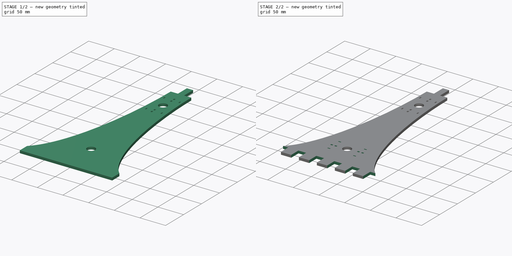
[diagram: build sequence overview — one tinted view per stage of 2, left to right]
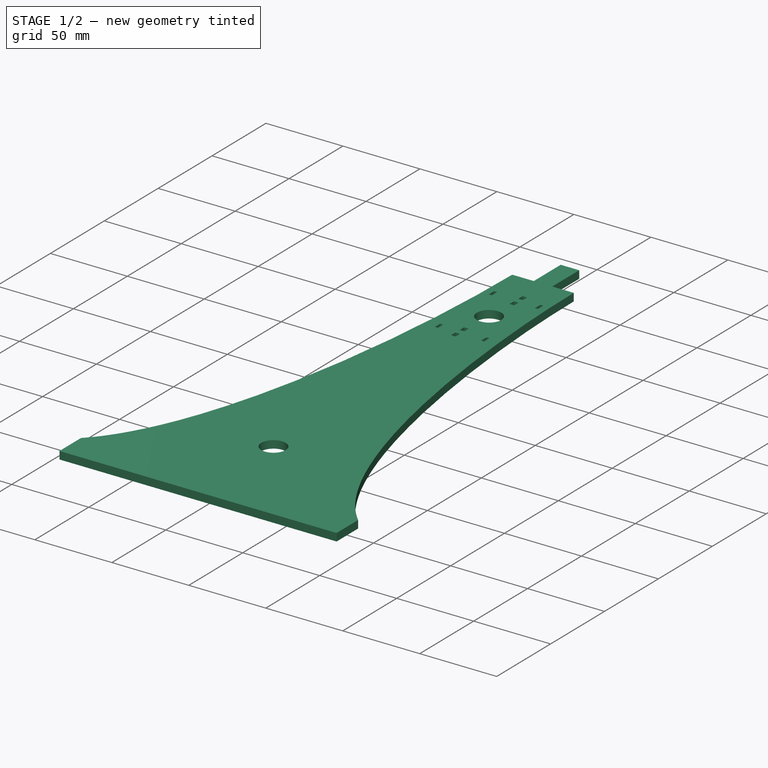
[diagram: stage 1 of 2 — iso view after this stage's code; geometry added in this stage tinted green]
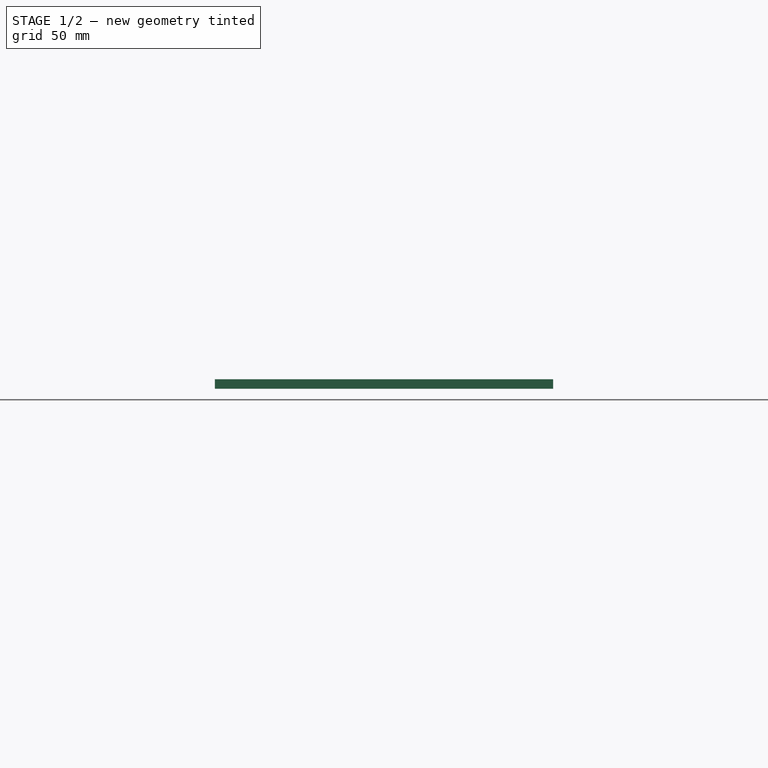
[diagram: stage 1 of 2 — front view after this stage's code; geometry added in this stage tinted green]
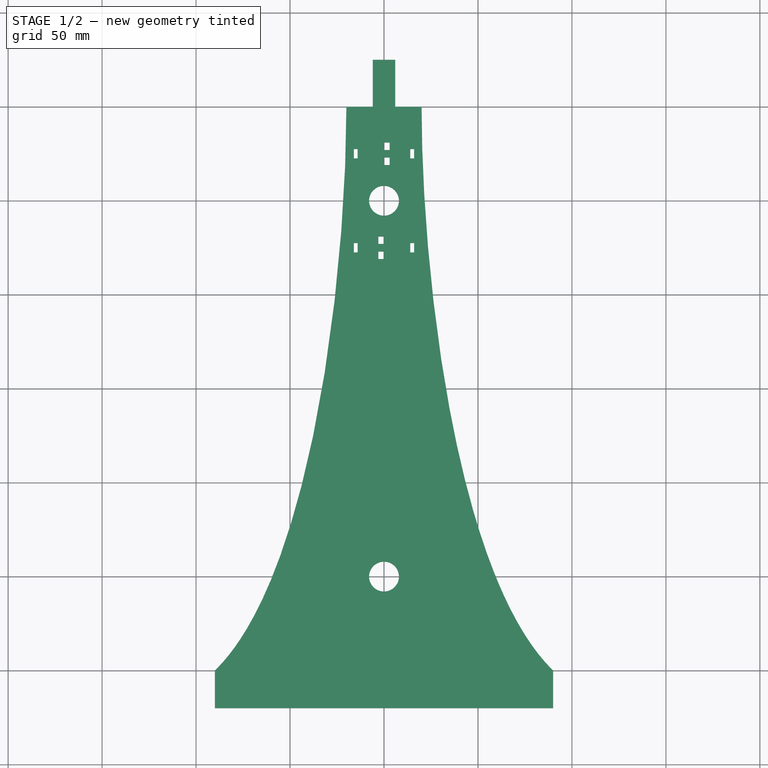
[diagram: stage 1 of 2 — top view after this stage's code; geometry added in this stage tinted green]
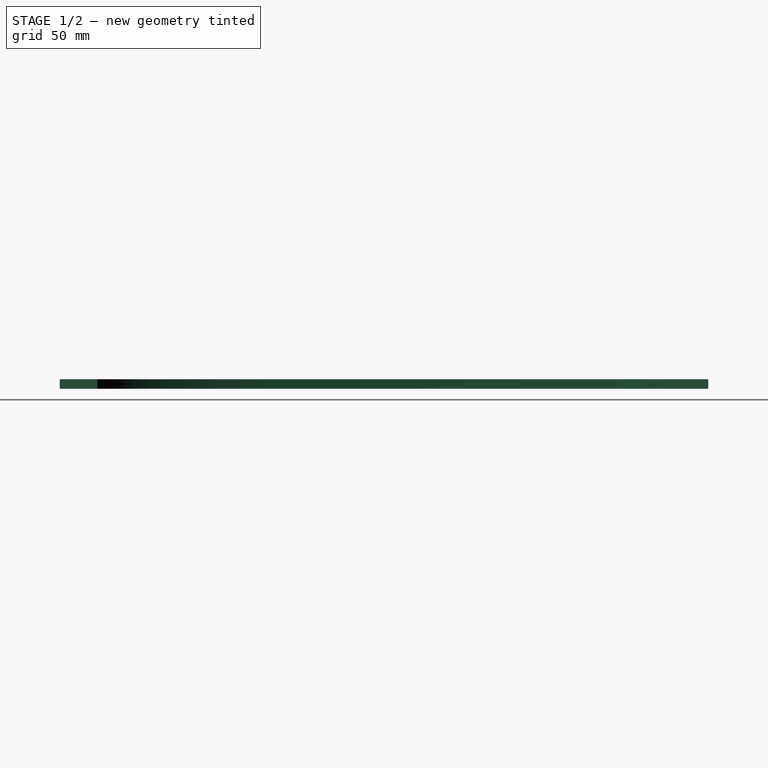
[diagram: stage 1 of 2 — right view after this stage's code; geometry added in this stage tinted green]
FCSTD DOCUMENT  (FreeCAD 0.17R13509 (Git))
Label: Vertical
License: All rights reserved
LicenseURL: http://en.wikipedia.org/wiki/All_rights_reserved
objects: Sketcher::SketchObject×4, PartDesign::Pocket×3, PartDesign::Pad×1, PartDesign::Body×1
note: 13 computed .brp shape members not serialized (recipe doc carries the construction recipe); baked Part::Feature solids carry a one-line shape summary decoded from their .brp

FEATURE [Sketcher::SketchObject] Sketch
  MapMode = 5
  Support = -> [XY_Plane]
  sketch-geometry (30):
    g0: LineSegment [constr] StartX=-20 StartY=175 StartZ=0 EndX=20 EndY=175 EndZ=0
    g1: LineSegment StartX=-20 StartY=150 StartZ=0 EndX=-6 EndY=150 EndZ=0
    g2: LineSegment StartX=-6 StartY=150 StartZ=0 EndX=-6 EndY=175 EndZ=0
    g3: LineSegment StartX=-6 StartY=175 StartZ=0 EndX=6 EndY=175 EndZ=0
    g4: LineSegment StartX=6 StartY=175 StartZ=0 EndX=6 EndY=150 EndZ=0
    g5: LineSegment StartX=6 StartY=150 StartZ=0 EndX=20 EndY=150 EndZ=0
    g6: LineSegment [constr] StartX=-20 StartY=150 StartZ=0 EndX=20 EndY=150 EndZ=0
    g7: LineSegment [constr] StartX=-90 StartY=-150 StartZ=0 EndX=90 EndY=-150 EndZ=0
    g8: Circle CenterX=0 CenterY=-100 CenterZ=0 NormalX=0 NormalY=0 NormalZ=1 AngleXU=0 Radius=7.95
    g9: Circle CenterX=0 CenterY=100 CenterZ=0 NormalX=0 NormalY=0 NormalZ=1 AngleXU=0 Radius=7.95
    g10-g13: Circle [constr] x4 (B-spline internal-alignment scaffolding for g14; pole/knot coordinates omitted)
    g14: BSplineCurve PolesCount=4 KnotsCount=2 Degree=3 IsPeriodic=0
    g15: GeomPoint [constr] X=-20 Y=150 Z=0
    g16: GeomPoint [constr] X=-90 Y=-150 Z=0
    g17-g20: Circle [constr] x4 (B-spline internal-alignment scaffolding for g21; pole/knot coordinates omitted)
    g21: BSplineCurve PolesCount=4 KnotsCount=2 Degree=3 IsPeriodic=0
    g22: GeomPoint [constr] X=90 Y=-150 Z=0
    g23: GeomPoint [constr] X=20 Y=150 Z=0
    g24: LineSegment [constr] StartX=-20 StartY=60 StartZ=0 EndX=20 EndY=60 EndZ=0
    g25: LineSegment [constr] StartX=-38.5 StartY=-100 StartZ=0 EndX=38.5 EndY=-100 EndZ=0
    g26: LineSegment [constr] StartX=-30 StartY=20 StartZ=0 EndX=30 EndY=20 EndZ=0
    g27: LineSegment StartX=-90 StartY=-150 StartZ=0 EndX=-90 EndY=-170 EndZ=0
    g28: LineSegment StartX=-90 StartY=-170 StartZ=0 EndX=90 EndY=-170 EndZ=0
    g29: LineSegment StartX=90 StartY=-170 StartZ=0 EndX=90 EndY=-150 EndZ=0
  constraints (78):
    c: Coincident(g1,g2)
    c: Vertical(g2)
    c: Coincident(g2,g3)
    c: Coincident(g3,g4)
    c: Vertical(g4)
    c: Coincident(g4,g5)
    c: Horizontal(g6)
    c: Horizontal(g0)
    c: Coincident(g1,g6)
    c: Coincident(g6,g5)
    c: PointOnObject(g4,g6)
    c: PointOnObject(g1,g6)
    c: PointOnObject(g2,g0)
    c: PointOnObject(g3,g0)
    c: DistanceY(g1,g0) = 25
    c: Symmetric(g5,g1,g-2)
    c: Equal(g0,g6)
    c: Symmetric(g0,g0,g-2)
    c: DistanceX(g0,g0) = 40
    c: DistanceX(g1,g2) = 14
    c: Horizontal(g7)
    c: Symmetric(g7,g7,g-2)
    c: PointOnObject(g8,g-2)
    c: PointOnObject(g9,g-2)
    c: Symmetric(g8,g9,g-1)
    c: DistanceY(g9) = 100
    c: Radius(g8) = 7.95
    c: Radius(g9) = 7.95
    c: DistanceY(g7,g8) = 50
    c: DistanceY(g9,g1) = 50
    c: DistanceY(g8,g-1) = 100
    c: Coincident(g10,g1)
    c: Radius(g10) = 20
    c: Equal(g10,g11)
    c: Equal(g10,g12)
    c: Equal(g10,g13)
    c: Coincident(g13,g7)
    c: InternalAlignment(g10-g13 -> g14) x4
    c: InternalAlignment(g15,g14)
    c: InternalAlignment(g16,g14)
    c: Coincident(g17,g7)
    c: Radius(g17) = 20
    c: Equal(g17,g18)
    c: Equal(g17,g19)
    c: Equal(g17,g20)
    c: Coincident(g20,g5)
    c: InternalAlignment(g17-g20 -> g21) x4
    c: InternalAlignment(g22,g21)
    c: InternalAlignment(g23,g21)
    c: Coincident(g24,g11)
    c: Coincident(g24,g19)
    c: Horizontal(g24)
    c: Symmetric(g19,g11,g-2)
    c: Coincident(g25,g12)
    c: Coincident(g25,g18)
    c: Horizontal(g25)
    c: Symmetric(g12,g18,g-2)
    c: Equal(g24,g0)
    c: Equal(g5,g1)
    c: DistanceX(g3,g3) = 12
    c: Horizontal(g26)
    c: DistanceX(g26,g26) = 60
    c: Symmetric(g26,g26,g-2)
    c: DistanceY(g26,g9) = 80
    c: DistanceY(g11,g9) = 40
    c: PointOnObject(g8,g25)
    c: DistanceX(g12,g18) = 77
    c: Coincident(g7,g27)
    c: PointOnObject(g27,g13)
    c: Vertical(g27)
    c: Coincident(g27,g28)
    c: PointOnObject(g28,g17)
    c: Horizontal(g28)
    c: Tangent(g28,g13)
    c: Coincident(g28,g29)
    c: Coincident(g29,g7)
    c: Vertical(g29)
    c: DistanceX(g28,g28) = 180
FEATURE [PartDesign::Pad] Pad
  Length = 5
  Length2 = 100
  Profile = -> Sketch
  Refine = true
  Type = 0
FEATURE [Sketcher::SketchObject] Sketch002
  MapMode = 5
  Placement = pos=(0,0,5) rot=(0,0,1;0rad)
  Support = -> [Pad]
  sketch-geometry (45):
    g0: LineSegment [constr] StartX=-35 StartY=-80 StartZ=0 EndX=35 EndY=-80 EndZ=0
    g1: LineSegment [constr] StartX=35 StartY=-80 StartZ=0 EndX=35 EndY=-120 EndZ=0
    g2: LineSegment [constr] StartX=35 StartY=-120 StartZ=0 EndX=-35 EndY=-120 EndZ=0
    g3: LineSegment [constr] StartX=-35 StartY=-120 StartZ=0 EndX=-35 EndY=-80 EndZ=0
    g4: LineSegment [constr] StartX=-25 StartY=-80 StartZ=0 EndX=-25 EndY=-120 EndZ=0
    g5: LineSegment [constr] StartX=25 StartY=-80 StartZ=0 EndX=25 EndY=-120 EndZ=0
    g6: LineSegment StartX=-27.5 StartY=-84 StartZ=0 EndX=-22.5 EndY=-84 EndZ=0
    g7: LineSegment StartX=-22.5 StartY=-84 StartZ=0 EndX=-22.5 EndY=-86 EndZ=0
    g8: LineSegment StartX=-22.5 StartY=-86 StartZ=0 EndX=-27.5 EndY=-86 EndZ=0
    g9: LineSegment StartX=-27.5 StartY=-86 StartZ=0 EndX=-27.5 EndY=-84 EndZ=0
    g10: LineSegment StartX=22.5 StartY=-84 StartZ=0 EndX=27.5 EndY=-84 EndZ=0
    g11: LineSegment StartX=27.5 StartY=-84 StartZ=0 EndX=27.5 EndY=-86 EndZ=0
    g12: LineSegment StartX=27.5 StartY=-86 StartZ=0 EndX=22.5 EndY=-86 EndZ=0
    g13: LineSegment StartX=22.5 StartY=-86 StartZ=0 EndX=22.5 EndY=-84 EndZ=0
    g14: LineSegment StartX=22.5 StartY=-114 StartZ=0 EndX=27.5 EndY=-114 EndZ=0
    g15: LineSegment StartX=27.5 StartY=-114 StartZ=0 EndX=27.5 EndY=-116 EndZ=0
    g16: LineSegment StartX=27.5 StartY=-116 StartZ=0 EndX=22.5 EndY=-116 EndZ=0
    g17: LineSegment StartX=22.5 StartY=-116 StartZ=0 EndX=22.5 EndY=-114 EndZ=0
    g18: LineSegment StartX=-27.5 StartY=-114 StartZ=0 EndX=-22.5 EndY=-114 EndZ=0
    g19: LineSegment StartX=-22.5 StartY=-114 StartZ=0 EndX=-22.5 EndY=-116 EndZ=0
    g20: LineSegment StartX=-22.5 StartY=-116 StartZ=0 EndX=-27.5 EndY=-116 EndZ=0
    g21: LineSegment StartX=-27.5 StartY=-116 StartZ=0 EndX=-27.5 EndY=-114 EndZ=0
    g22: LineSegment [constr] StartX=-35 StartY=-100 StartZ=0 EndX=35 EndY=-100 EndZ=0
    g23: LineSegment [constr] StartX=-35 StartY=-85 StartZ=0 EndX=35 EndY=-85 EndZ=0
    g24: LineSegment [constr] StartX=-35 StartY=-115 StartZ=0 EndX=35 EndY=-115 EndZ=0
    g25: LineSegment StartX=19 StartY=-97 StartZ=0 EndX=23 EndY=-97 EndZ=0
    g26: LineSegment StartX=23 StartY=-97 StartZ=0 EndX=23 EndY=-100 EndZ=0
    g27: LineSegment StartX=23 StartY=-100 StartZ=0 EndX=19 EndY=-100 EndZ=0
    g28: LineSegment StartX=19 StartY=-100 StartZ=0 EndX=19 EndY=-97 EndZ=0
    g29: LineSegment StartX=27 StartY=-97 StartZ=0 EndX=31 EndY=-97 EndZ=0
    g30: LineSegment StartX=31 StartY=-97 StartZ=0 EndX=31 EndY=-100 EndZ=0
    g31: LineSegment StartX=31 StartY=-100 StartZ=0 EndX=27 EndY=-100 EndZ=0
    g32: LineSegment StartX=27 StartY=-100 StartZ=0 EndX=27 EndY=-97 EndZ=0
    g33: LineSegment [constr] StartX=23 StartY=-97 StartZ=0 EndX=27 EndY=-97 EndZ=0
    g34: LineSegment [constr] StartX=27 StartY=-100 StartZ=0 EndX=23 EndY=-100 EndZ=0
    g35: LineSegment StartX=-31 StartY=-100 StartZ=0 EndX=-27 EndY=-100 EndZ=0
    g36: LineSegment StartX=-27 StartY=-100 StartZ=0 EndX=-27 EndY=-103 EndZ=0
    g37: LineSegment StartX=-27 StartY=-103 StartZ=0 EndX=-31 EndY=-103 EndZ=0
    g38: LineSegment StartX=-31 StartY=-103 StartZ=0 EndX=-31 EndY=-100 EndZ=0
    g39: LineSegment StartX=-23 StartY=-100 StartZ=0 EndX=-19 EndY=-100 EndZ=0
    g40: LineSegment StartX=-19 StartY=-100 StartZ=0 EndX=-19 EndY=-103 EndZ=0
    g41: LineSegment StartX=-19 StartY=-103 StartZ=0 EndX=-23 EndY=-103 EndZ=0
    g42: LineSegment StartX=-23 StartY=-103 StartZ=0 EndX=-23 EndY=-100 EndZ=0
    g43: LineSegment [constr] StartX=-27 StartY=-100 StartZ=0 EndX=-23 EndY=-100 EndZ=0
    g44: LineSegment [constr] StartX=-23 StartY=-103 StartZ=0 EndX=-27 EndY=-103 EndZ=0
  constraints (131):
    c: Coincident(g0,g1)
    c: Coincident(g1,g2)
    c: Coincident(g2,g3)
    c: Coincident(g3,g0)
    c: Horizontal(g2)
    c: Vertical(g1)
    c: Symmetric(g0,g0,g-2)
    c: DistanceX(g0,g0) = 70
    c: DistanceY(g3,g3) = 40
    c: PointOnObject(g4,g0)
    c: PointOnObject(g4,g2)
    c: PointOnObject(g5,g0)
    c: PointOnObject(g5,g2)
    c: Symmetric(g4,g5,g-2)
    c: DistanceX(g4,g5) = 50
    c: Coincident(g6,g7)
    c: Coincident(g7,g8)
    c: Coincident(g8,g9)
    c: Coincident(g9,g6)
    c: Horizontal(g6)
    c: Horizontal(g8)
    c: Vertical(g7)
    c: Vertical(g9)
    c: Coincident(g10,g11)
    c: Coincident(g11,g12)
    c: Coincident(g12,g13)
    c: Coincident(g13,g10)
    c: Horizontal(g10)
    c: Horizontal(g12)
    c: Vertical(g11)
    c: Vertical(g13)
    c: Coincident(g14,g15)
    c: Coincident(g15,g16)
    c: Coincident(g16,g17)
    c: Coincident(g17,g14)
    c: Horizontal(g14)
    c: Horizontal(g16)
    c: Vertical(g15)
    c: Vertical(g17)
    c: Coincident(g18,g19)
    c: Coincident(g19,g20)
    c: Coincident(g20,g21)
    c: Coincident(g21,g18)
    c: Horizontal(g18)
    c: Horizontal(g20)
    c: Vertical(g19)
    c: Vertical(g21)
    c: Symmetric(g18,g18,g4)
    c: Symmetric(g6,g6,g4)
    c: Symmetric(g10,g10,g5)
    c: Symmetric(g14,g14,g5)
    c: Equal(g6,g10)
    c: Equal(g10,g14)
    c: Equal(g14,g18)
    c: Equal(g9,g21)
    c: Equal(g21,g17)
    c: Equal(g17,g13)
    c: PointOnObject(g22,g3)
    c: PointOnObject(g22,g1)
    c: Symmetric(g22,g22,g-2)
    c: Symmetric(g0,g2,g22)
    c: DistanceY(g-1,g22) = -100
    c: Symmetric(g6,g8,g23)
    c: Symmetric(g12,g10,g23)
    c: Symmetric(g24,g24,g-2)
    c: Symmetric(g23,g23,g-2)
    c: Symmetric(g20,g18,g24)
    c: Symmetric(g16,g14,g24)
    c: DistanceY(g2,g24) = 5
    c: DistanceY(g24,g23) = 30
    c: PointOnObject(g24,g3)
    c: PointOnObject(g23,g3)
    c: Symmetric(g24,g23,g22)
    c: DistanceY(g7,g7) = 2
    c: DistanceX(g8,g8) = 5
    c: Coincident(g25,g26)
    c: Coincident(g26,g27)
    c: Coincident(g27,g28)
    c: Coincident(g28,g25)
    c: Horizontal(g25)
    c: Horizontal(g27)
    c: Vertical(g26)
    c: Vertical(g28)
    c: Coincident(g29,g30)
    c: Coincident(g30,g31)
    c: Coincident(g31,g32)
    c: Coincident(g32,g29)
    c: Horizontal(g29)
    c: Horizontal(g31)
    c: Vertical(g30)
    c: Vertical(g32)
    c: Coincident(g33,g25)
    c: Coincident(g33,g29)
    c: Coincident(g34,g31)
    c: Coincident(g34,g26)
    c: Horizontal(g34)
    c: Horizontal(g33)
    c: DistanceY(g28,g28) = 3
    c: Equal(g29,g33)
    c: Equal(g33,g25)
    c: DistanceX(g25,g29) = 12
    c: Symmetric(g25,g29,g5)
    c: PointOnObject(g27,g22)
    c: Coincident(g35,g36)
    c: Coincident(g36,g37)
    c: Coincident(g37,g38)
    c: Coincident(g38,g35)
    c: Horizontal(g35)
    c: Horizontal(g37)
    c: Vertical(g36)
    c: Vertical(g38)
    c: Coincident(g39,g40)
    c: Coincident(g40,g41)
    c: Coincident(g41,g42)
    c: Coincident(g42,g39)
    c: Horizontal(g39)
    c: Horizontal(g41)
    c: Vertical(g40)
    c: Vertical(g42)
    c: Coincident(g43,g35)
    c: Coincident(g43,g39)
    c: Horizontal(g43)
    c: Coincident(g44,g41)
    c: Coincident(g44,g36)
    c: Horizontal(g44)
    c: DistanceY(g38,g38) = 3
    c: Equal(g35,g43)
    c: Equal(g43,g39)
    c: DistanceX(g35,g39) = 12
    c: Symmetric(g35,g39,g4)
    c: PointOnObject(g35,g22)
FEATURE [Sketcher::SketchObject] Sketch003
  AttachmentOffset = pos=(0,100,0) rot=(0,0,1;1.5708rad)
  MapMode = 5
  Placement = pos=(0,100,5) rot=(0,0,1;1.5708rad)
  Support = -> [Pad]
  sketch-geometry (44):
    g0: LineSegment [constr] StartX=-35 StartY=20 StartZ=0 EndX=35 EndY=20 EndZ=0
    g1: LineSegment [constr] StartX=35 StartY=20 StartZ=0 EndX=35 EndY=-20 EndZ=0
    g2: LineSegment [constr] StartX=35 StartY=-20 StartZ=0 EndX=-35 EndY=-20 EndZ=0
    g3: LineSegment [constr] StartX=-35 StartY=-20 StartZ=0 EndX=-35 EndY=20 EndZ=0
    g4: LineSegment [constr] StartX=-25 StartY=20 StartZ=0 EndX=-25 EndY=-20 EndZ=0
    g5: LineSegment [constr] StartX=25 StartY=20 StartZ=0 EndX=25 EndY=-20 EndZ=0
    g6: LineSegment [constr] StartX=-35 StartY=-15 StartZ=0 EndX=35 EndY=-15 EndZ=0
    g7: LineSegment [constr] StartX=35 StartY=15 StartZ=0 EndX=-35 EndY=15 EndZ=0
    g8: LineSegment StartX=-27.5 StartY=16 StartZ=0 EndX=-22.5 EndY=16 EndZ=0
    g9: LineSegment StartX=-22.5 StartY=16 StartZ=0 EndX=-22.5 EndY=14 EndZ=0
    g10: LineSegment StartX=-22.5 StartY=14 StartZ=0 EndX=-27.5 EndY=14 EndZ=0
    g11: LineSegment StartX=-27.5 StartY=14 StartZ=0 EndX=-27.5 EndY=16 EndZ=0
    g12: LineSegment StartX=22.5 StartY=16 StartZ=0 EndX=27.5 EndY=16 EndZ=0
    g13: LineSegment StartX=27.5 StartY=16 StartZ=0 EndX=27.5 EndY=14 EndZ=0
    g14: LineSegment StartX=27.5 StartY=14 StartZ=0 EndX=22.5 EndY=14 EndZ=0
    g15: LineSegment StartX=22.5 StartY=14 StartZ=0 EndX=22.5 EndY=16 EndZ=0
    g16: LineSegment StartX=22.5 StartY=-14 StartZ=0 EndX=27.5 EndY=-14 EndZ=0
    g17: LineSegment StartX=27.5 StartY=-14 StartZ=0 EndX=27.5 EndY=-16 EndZ=0
    g18: LineSegment StartX=27.5 StartY=-16 StartZ=0 EndX=22.5 EndY=-16 EndZ=0
    g19: LineSegment StartX=22.5 StartY=-16 StartZ=0 EndX=22.5 EndY=-14 EndZ=0
    g20: LineSegment StartX=-27.5 StartY=-14 StartZ=0 EndX=-22.5 EndY=-14 EndZ=0
    g21: LineSegment StartX=-22.5 StartY=-14 StartZ=0 EndX=-22.5 EndY=-16 EndZ=0
    g22: LineSegment StartX=-22.5 StartY=-16 StartZ=0 EndX=-27.5 EndY=-16 EndZ=0
    g23: LineSegment StartX=-27.5 StartY=-16 StartZ=0 EndX=-27.5 EndY=-14 EndZ=0
    g24: LineSegment StartX=-31 StartY=3 StartZ=0 EndX=-27 EndY=3 EndZ=0
    g25: LineSegment StartX=-27 StartY=3 StartZ=0 EndX=-27 EndY=0 EndZ=0
    g26: LineSegment StartX=-27 StartY=0 StartZ=0 EndX=-31 EndY=0 EndZ=0
    g27: LineSegment StartX=-31 StartY=0 StartZ=0 EndX=-31 EndY=3 EndZ=0
    g28: LineSegment StartX=-23 StartY=3 StartZ=0 EndX=-19 EndY=3 EndZ=0
    g29: LineSegment StartX=-19 StartY=3 StartZ=0 EndX=-19 EndY=0 EndZ=0
    g30: LineSegment StartX=-19 StartY=0 StartZ=0 EndX=-23 EndY=0 EndZ=0
    g31: LineSegment StartX=-23 StartY=0 StartZ=0 EndX=-23 EndY=3 EndZ=0
    g32: LineSegment [constr] StartX=-27 StartY=3 StartZ=0 EndX=-23 EndY=3 EndZ=0
    g33: LineSegment [constr] StartX=-27 StartY=0 StartZ=0 EndX=-23 EndY=0 EndZ=0
    g34: LineSegment StartX=19 StartY=0 StartZ=0 EndX=23 EndY=0 EndZ=0
    g35: LineSegment StartX=23 StartY=0 StartZ=0 EndX=23 EndY=-3 EndZ=0
    g36: LineSegment StartX=23 StartY=-3 StartZ=0 EndX=19 EndY=-3 EndZ=0
    g37: LineSegment StartX=19 StartY=-3 StartZ=0 EndX=19 EndY=0 EndZ=0
    g38: LineSegment StartX=27 StartY=0 StartZ=0 EndX=31 EndY=0 EndZ=0
    g39: LineSegment StartX=31 StartY=0 StartZ=0 EndX=31 EndY=-3 EndZ=0
    g40: LineSegment StartX=31 StartY=-3 StartZ=0 EndX=27 EndY=-3 EndZ=0
    g41: LineSegment StartX=27 StartY=-3 StartZ=0 EndX=27 EndY=0 EndZ=0
    g42: LineSegment [constr] StartX=23 StartY=0 StartZ=0 EndX=27 EndY=0 EndZ=0
    g43: LineSegment [constr] StartX=23 StartY=-3 StartZ=0 EndX=27 EndY=-3 EndZ=0
  constraints (126):
    c: Coincident(g0,g1)
    c: Coincident(g1,g2)
    c: Coincident(g2,g3)
    c: Coincident(g3,g0)
    c: Horizontal(g2)
    c: Vertical(g1)
    c: Symmetric(g0,g0,g-2)
    c: Symmetric(g2,g0,g-1)
    c: DistanceX(g0,g0) = 70
    c: DistanceY(g3,g3) = 40
    c: PointOnObject(g4,g0)
    c: PointOnObject(g4,g2)
    c: PointOnObject(g5,g0)
    c: PointOnObject(g5,g2)
    c: PointOnObject(g6,g3)
    c: PointOnObject(g6,g1)
    c: PointOnObject(g7,g3)
    c: Symmetric(g4,g5,g-2)
    c: Symmetric(g7,g6,g-1)
    c: PointOnObject(g7,g1)
    c: DistanceY(g6,g7) = 30
    c: DistanceX(g4,g5) = 50
    c: Coincident(g8,g9)
    c: Coincident(g9,g10)
    c: Coincident(g10,g11)
    c: Coincident(g11,g8)
    c: Horizontal(g8)
    c: Horizontal(g10)
    c: Vertical(g9)
    c: Vertical(g11)
    c: Coincident(g12,g13)
    c: Coincident(g13,g14)
    c: Coincident(g14,g15)
    c: Coincident(g15,g12)
    c: Horizontal(g12)
    c: Horizontal(g14)
    c: Vertical(g13)
    c: Vertical(g15)
    c: Coincident(g16,g17)
    c: Coincident(g17,g18)
    c: Coincident(g18,g19)
    c: Coincident(g19,g16)
    c: Horizontal(g16)
    c: Horizontal(g18)
    c: Vertical(g17)
    c: Vertical(g19)
    c: Coincident(g20,g21)
    c: Coincident(g21,g22)
    c: Coincident(g22,g23)
    c: Coincident(g23,g20)
    c: Horizontal(g20)
    c: Horizontal(g22)
    c: Vertical(g21)
    c: Vertical(g23)
    c: Symmetric(g20,g20,g4)
    c: Symmetric(g20,g22,g6)
    c: Symmetric(g8,g8,g4)
    c: Symmetric(g10,g8,g7)
    c: Symmetric(g12,g12,g5)
    c: Symmetric(g12,g14,g7)
    c: Symmetric(g16,g16,g5)
    c: Symmetric(g18,g16,g6)
    c: DistanceX(g8,g8) = 5
    c: DistanceY(g10,g8) = 2
    c: Equal(g8,g12)
    c: Equal(g12,g16)
    c: Equal(g16,g20)
    c: Equal(g11,g23)
    c: Equal(g23,g19)
    c: Equal(g19,g15)
    c: Coincident(g24,g25)
    c: Coincident(g25,g26)
    c: Coincident(g26,g27)
    c: Coincident(g27,g24)
    c: Horizontal(g24)
    c: Horizontal(g26)
    c: Vertical(g25)
    c: Vertical(g27)
    c: Coincident(g28,g29)
    c: Coincident(g29,g30)
    c: Coincident(g30,g31)
    c: Coincident(g31,g28)
    c: Horizontal(g28)
    c: Horizontal(g30)
    c: Vertical(g29)
    c: Vertical(g31)
    c: Coincident(g32,g24)
    c: Coincident(g32,g28)
    c: Horizontal(g32)
    c: Coincident(g33,g25)
    c: Coincident(g33,g30)
    c: Horizontal(g33)
    c: DistanceY(g27,g27) = 3
    c: DistanceX(g24,g28) = 12
    c: Equal(g24,g32)
    c: Equal(g32,g28)
    c: Symmetric(g24,g28,g4)
    c: PointOnObject(g26,g-1)
    c: Coincident(g34,g35)
    c: Coincident(g35,g36)
    c: Coincident(g36,g37)
    c: Coincident(g37,g34)
    c: Horizontal(g34)
    c: Horizontal(g36)
    c: Vertical(g35)
    c: Vertical(g37)
    c: Coincident(g38,g39)
    c: Coincident(g39,g40)
    c: Coincident(g40,g41)
    c: Coincident(g41,g38)
    c: Horizontal(g38)
    c: Horizontal(g40)
    c: Vertical(g39)
    c: Vertical(g41)
    c: Coincident(g42,g34)
    c: Coincident(g42,g38)
    c: Horizontal(g42)
    c: Coincident(g43,g35)
    c: Coincident(g43,g40)
    c: Horizontal(g43)
    c: DistanceY(g37,g37) = 3
    c: Equal(g34,g42)
    c: Equal(g42,g38)
    c: DistanceX(g34,g38) = 12
    c: Symmetric(g34,g38,g5)
    c: PointOnObject(g34,g-1)
FEATURE [PartDesign::Pocket] Pocket
  BaseFeature = -> Pad
  Length = 0
  Length2 = 100
  Profile = -> Sketch003
  Refine = true
  Type = 1
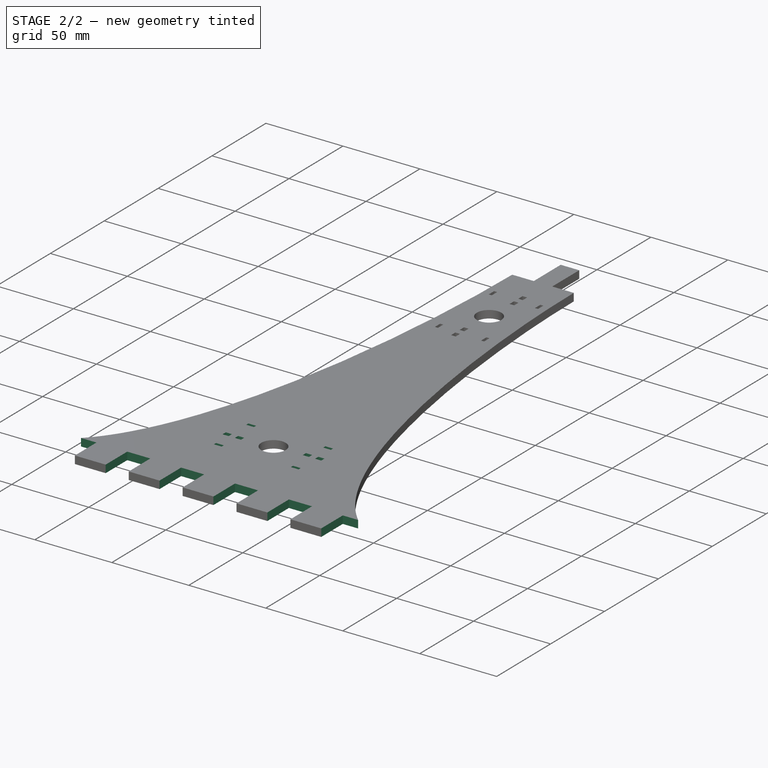
[diagram: stage 2 of 2 — iso view after this stage's code; geometry added in this stage tinted green]
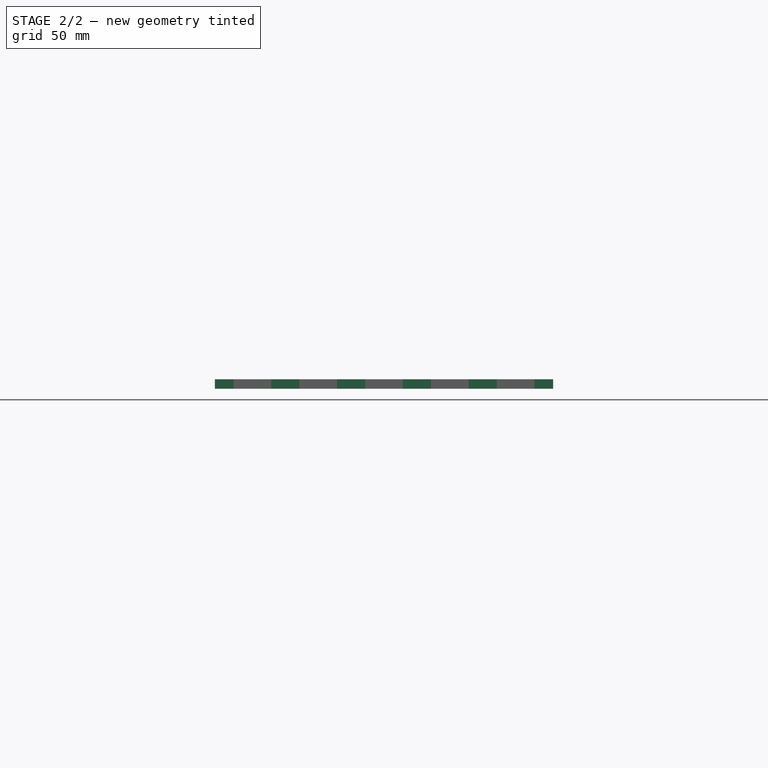
[diagram: stage 2 of 2 — front view after this stage's code; geometry added in this stage tinted green]
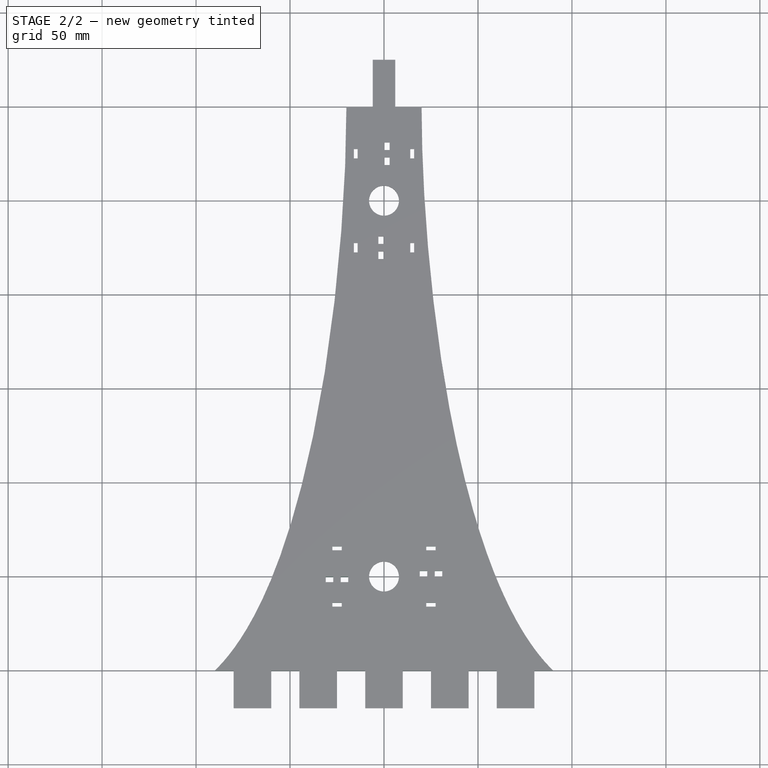
[diagram: stage 2 of 2 — top view after this stage's code; geometry added in this stage tinted green]
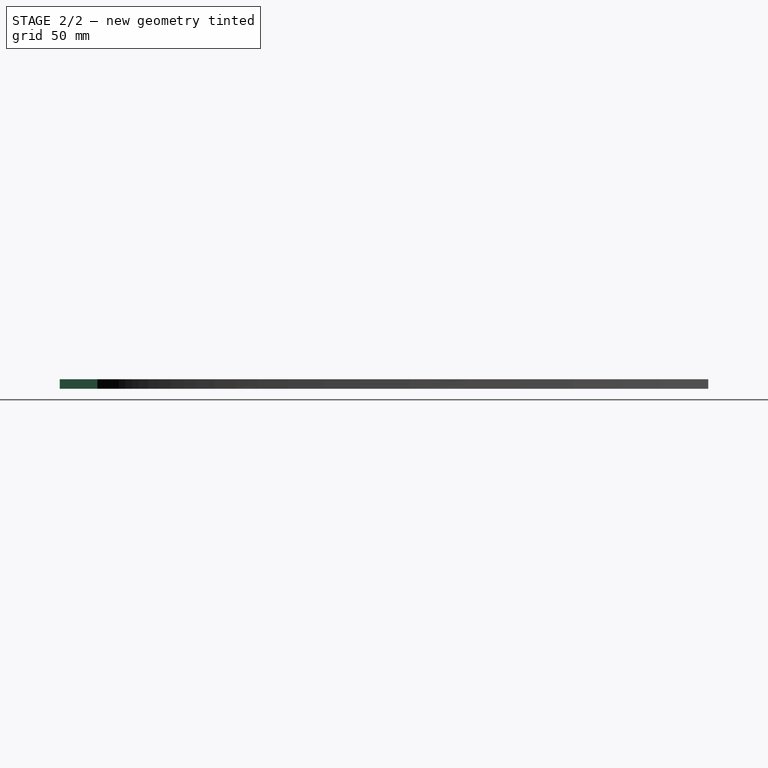
[diagram: stage 2 of 2 — right view after this stage's code; geometry added in this stage tinted green]
FEATURE [PartDesign::Pocket] Pocket001
  BaseFeature = -> Pocket
  Length = 5
  Length2 = 100
  Profile = -> Sketch002
  Refine = true
  Type = 1
FEATURE [Sketcher::SketchObject] Sketch004
  ExternalGeometry = -> [Pocket001]
  MapMode = 5
  Placement = pos=(0,0,5) rot=(0,0,1;0rad)
  Support = -> [Pocket001]
  sketch-geometry (24):
    g0: LineSegment StartX=-90 StartY=-150 StartZ=0 EndX=-80 EndY=-150 EndZ=0
    g1: LineSegment StartX=-80 StartY=-150 StartZ=0 EndX=-80 EndY=-170 EndZ=0
    g2: LineSegment StartX=-80 StartY=-170 StartZ=0 EndX=-60 EndY=-170 EndZ=0
    g3: LineSegment StartX=-60 StartY=-170 StartZ=0 EndX=-60 EndY=-150 EndZ=0
    g4: LineSegment StartX=-60 StartY=-150 StartZ=0 EndX=-45 EndY=-150 EndZ=0
    g5: LineSegment StartX=-45 StartY=-150 StartZ=0 EndX=-45 EndY=-170 EndZ=0
    g6: LineSegment StartX=-45 StartY=-170 StartZ=0 EndX=-25 EndY=-170 EndZ=0
    g7: LineSegment StartX=-25 StartY=-170 StartZ=0 EndX=-25 EndY=-150 EndZ=0
    g8: LineSegment StartX=-25 StartY=-150 StartZ=0 EndX=-10 EndY=-150 EndZ=0
    g9: LineSegment StartX=-10 StartY=-150 StartZ=0 EndX=-10 EndY=-170 EndZ=0
    g10: LineSegment StartX=-10 StartY=-170 StartZ=0 EndX=10 EndY=-170 EndZ=0
    g11: LineSegment StartX=10 StartY=-170 StartZ=0 EndX=10 EndY=-150 EndZ=0
    g12: LineSegment StartX=10 StartY=-150 StartZ=0 EndX=25 EndY=-150 EndZ=0
    g13: LineSegment StartX=25 StartY=-150 StartZ=0 EndX=25 EndY=-170 EndZ=0
    g14: LineSegment StartX=25 StartY=-170 StartZ=0 EndX=45 EndY=-170 EndZ=0
    g15: LineSegment StartX=45 StartY=-170 StartZ=0 EndX=45 EndY=-150 EndZ=0
    g16: LineSegment StartX=45 StartY=-150 StartZ=0 EndX=60 EndY=-150 EndZ=0
    g17: LineSegment StartX=60 StartY=-150 StartZ=0 EndX=60 EndY=-170 EndZ=0
    g18: LineSegment StartX=60 StartY=-170 StartZ=0 EndX=80 EndY=-170 EndZ=0
    g19: LineSegment StartX=80 StartY=-170 StartZ=0 EndX=80 EndY=-150 EndZ=0
    g20: LineSegment StartX=80 StartY=-150 StartZ=0 EndX=90 EndY=-150 EndZ=0
    g21: LineSegment StartX=90 StartY=-150 StartZ=0 EndX=90 EndY=-180 EndZ=0
    g22: LineSegment StartX=90 StartY=-180 StartZ=0 EndX=-90 EndY=-180 EndZ=0
    g23: LineSegment StartX=-90 StartY=-180 StartZ=0 EndX=-90 EndY=-150 EndZ=0
  constraints (70):
    c: Coincident(g0,g-3)
    c: Horizontal(g0)
    c: Coincident(g0,g1)
    c: Vertical(g1)
    c: Coincident(g1,g2)
    c: Horizontal(g2)
    c: Coincident(g2,g3)
    c: Vertical(g3)
    c: Coincident(g3,g4)
    c: Horizontal(g4)
    c: Coincident(g4,g5)
    c: Vertical(g5)
    c: Coincident(g5,g6)
    c: Horizontal(g6)
    c: Coincident(g6,g7)
    c: Vertical(g7)
    c: Coincident(g7,g8)
    c: Horizontal(g8)
    c: Coincident(g8,g9)
    c: Vertical(g9)
    c: Coincident(g9,g10)
    c: Coincident(g10,g11)
    c: Vertical(g11)
    c: Coincident(g11,g12)
    c: Coincident(g12,g13)
    c: Vertical(g13)
    c: Coincident(g13,g14)
    c: Horizontal(g14)
    c: Coincident(g14,g15)
    c: Vertical(g15)
    c: Coincident(g15,g16)
    c: Horizontal(g16)
    c: Coincident(g16,g17)
    c: Coincident(g17,g18)
    c: Horizontal(g18)
    c: Coincident(g18,g19)
    c: Vertical(g19)
    c: Coincident(g19,g20)
    c: Coincident(g20,g-4)
    c: Horizontal(g20)
    c: Vertical(g17)
    c: Horizontal(g12)
    c: Equal(g1,g3)
    c: Equal(g3,g5)
    c: Equal(g5,g7)
    c: Equal(g7,g9)
    c: Equal(g9,g11)
    c: Equal(g11,g13)
    c: Equal(g13,g15)
    c: Equal(g15,g17)
    c: Equal(g17,g19)
    c: Equal(g2,g6)
    c: Equal(g6,g10)
    c: Equal(g10,g14)
    c: Equal(g14,g18)
    c: Symmetric(g9,g10,g-2)
    c: Equal(g4,g8)
    c: Equal(g8,g12)
    c: Equal(g12,g16)
    c: DistanceY(g1,g0) = 20
    c: DistanceX(g10,g10) = 20
    c: DistanceX(g8,g8) = 15
    c: Coincident(g20,g21)
    c: Vertical(g21)
    c: Coincident(g21,g22)
    c: Horizontal(g22)
    c: Coincident(g22,g23)
    c: Coincident(g23,g0)
    c: Vertical(g23)
    c: DistanceY(g21,g21) = 30
FEATURE [PartDesign::Pocket] Pocket002
  BaseFeature = -> Pocket001
  Length = 5
  Length2 = 100
  Profile = -> Sketch004
  Type = 1
FEATURE [PartDesign::Body] Body
  Group = -> [Sketch,Pad,Sketch002,Sketch003,Pocket,Pocket001,Sketch004,Pocket002]
  Origin = -> Origin
  Tip = -> Pocket002
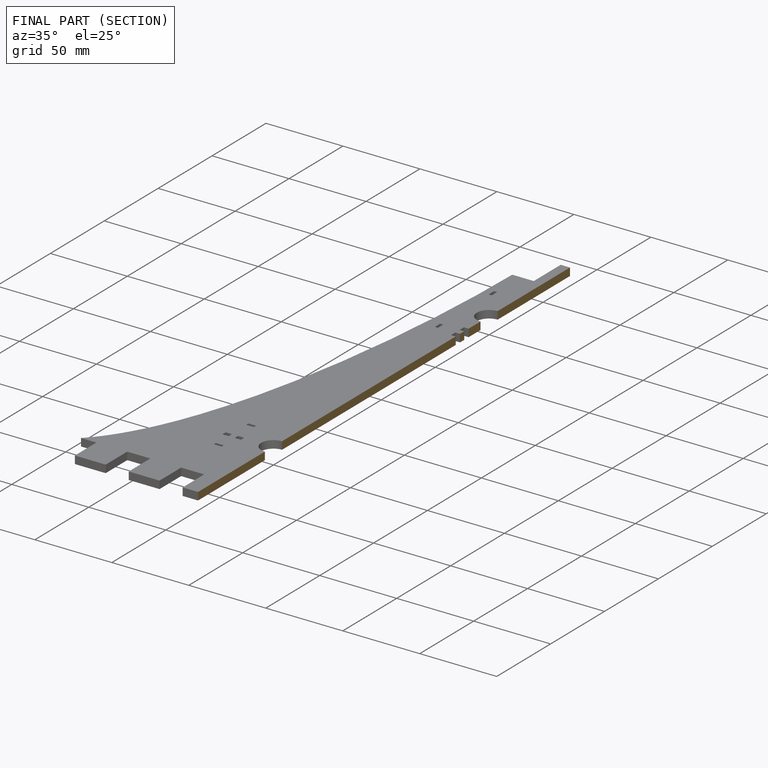
[diagram: finished part — half-section view (interior)]
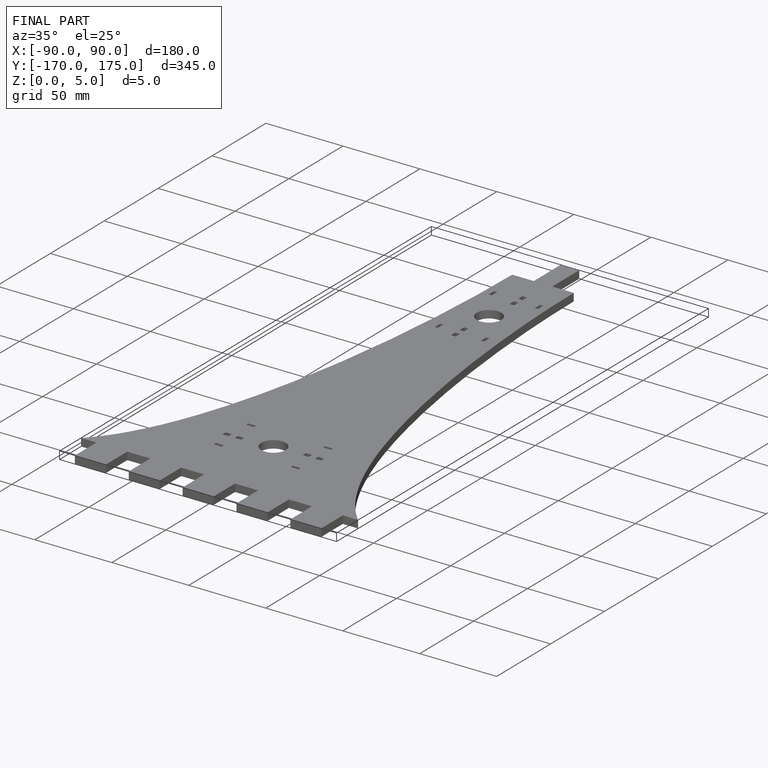
[diagram: finished part — iso view with bounding-box wireframe]
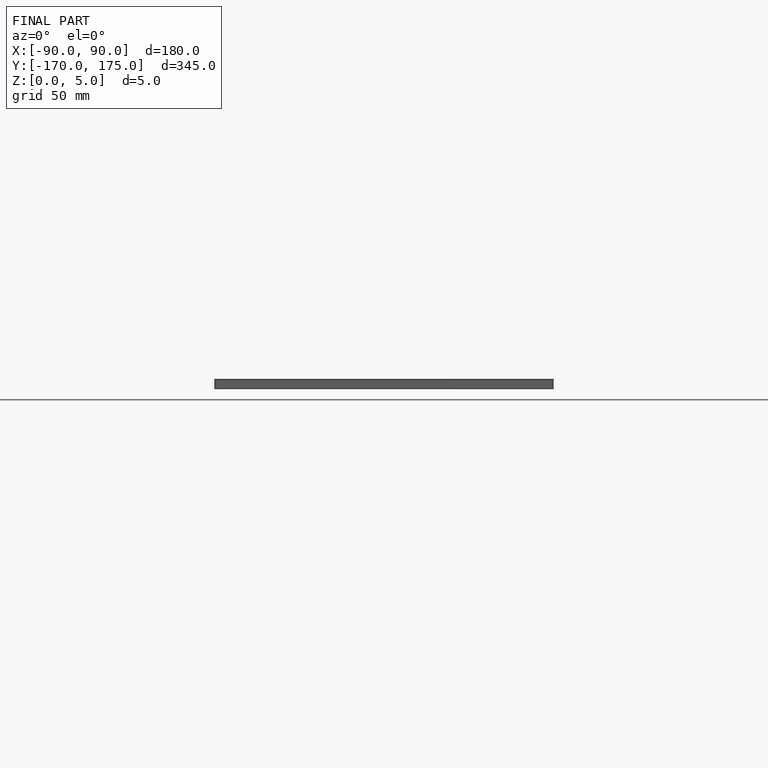
[diagram: finished part — front view with bounding-box wireframe]
